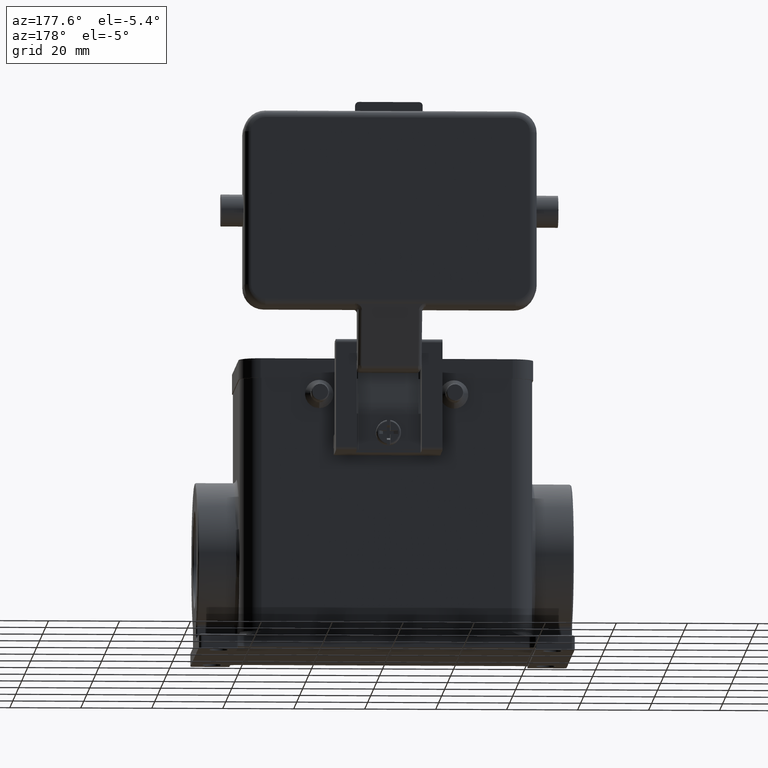
[diagram: clean part render]
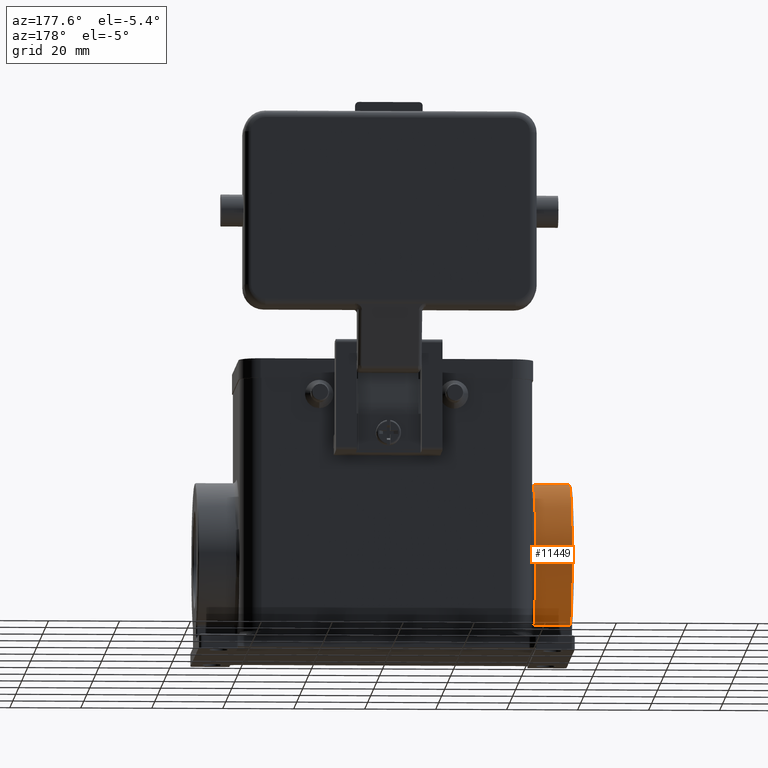
[diagram: same view with one face highlighted and labeled with its STEP entity id]
A machine part, auxiliary view. The second image highlights one B-rep face of the part: STEP entity #11449.
In plain terms, the highlighted face is a freeform B-spline surface patch.
Its self-contained STEP definition (entity closure, byte-faithful):
#4511=CARTESIAN_POINT('',(-52.500000000000000,-9.999999999999996,-5.685174088281308));
#4512=VERTEX_POINT('',#4511);
#4513=CARTESIAN_POINT('',(-42.250000000000000,-9.999999999999996,-5.685174088281308));
#4514=VERTEX_POINT('',#4513);
#4515=CARTESIAN_POINT('',(-52.500000000000000,-9.999999999999996,-5.685174088281308));
#4516=DIRECTION('',(1.0,0.0,0.0));
#4517=VECTOR('',#4516,10.250000000000000);
#4518=LINE('',#4515,#4517);
#4519=EDGE_CURVE('',#4512,#4514,#4518,.T.);
#4587=CARTESIAN_POINT('',(-52.500000000000000,10.516483516483516,-44.038541815158290));
#4588=VERTEX_POINT('',#4587);
#4596=CARTESIAN_POINT('',(-42.250000000000000,10.516483516483516,-44.038541815158290));
#4597=VERTEX_POINT('',#4596);
#4598=CARTESIAN_POINT('',(-52.500000000000000,10.516483516483516,-44.038541815158290));
#4599=DIRECTION('',(1.0,0.0,0.0));
#4600=VECTOR('',#4599,10.250000000000000);
#4601=LINE('',#4598,#4600);
#4602=EDGE_CURVE('',#4588,#4597,#4601,.T.);
#5053=CARTESIAN_POINT('',(-42.250000000000000,2.663519E-015,-3.250000000000007));
#5054=VERTEX_POINT('',#5053);
#5064=CARTESIAN_POINT('',(-42.250000000000000,0.0,-25.000000000000007));
#5065=DIRECTION('',(1.0,0.0,0.0));
#5066=DIRECTION('',(0.0,0.0,1.0));
#5067=AXIS2_PLACEMENT_3D('',#5064,#5065,#5066);
#5068=CIRCLE('',#5067,21.750000000000000);
#5069=EDGE_CURVE('',#5054,#4514,#5068,.T.);
#6549=CARTESIAN_POINT('',(-52.500000000000000,-2.663519E-015,-3.250000000000007));
#6550=VERTEX_POINT('',#6549);
#6560=CARTESIAN_POINT('',(-52.500000000000000,0.0,-25.000000000000007));
#6561=DIRECTION('',(-1.0,0.0,0.0));
#6562=DIRECTION('',(0.0,0.0,1.0));
#6563=AXIS2_PLACEMENT_3D('',#6560,#6561,#6562);
#6564=CIRCLE('',#6563,21.750000000000000);
#6565=EDGE_CURVE('',#6550,#4588,#6564,.T.);
#7260=CARTESIAN_POINT('',(-52.500000000000000,0.0,-25.000000000000007));
#7261=DIRECTION('',(-1.0,0.0,0.0));
#7262=DIRECTION('',(0.0,0.0,1.0));
#7263=AXIS2_PLACEMENT_3D('',#7260,#7261,#7262);
#7264=CIRCLE('',#7263,21.750000000000000);
#7265=EDGE_CURVE('',#4512,#6550,#7264,.T.);
#10264=CARTESIAN_POINT('',(-42.250000000000000,20.698351648351650,-18.318627458285356));
#10265=VERTEX_POINT('',#10264);
#10273=CARTESIAN_POINT('',(-42.250000000000000,0.0,-25.000000000000007));
#10274=DIRECTION('',(1.0,0.0,0.0));
#10275=DIRECTION('',(0.0,0.0,1.0));
#10276=AXIS2_PLACEMENT_3D('',#10273,#10274,#10275);
#10277=CIRCLE('',#10276,21.750000000000000);
#10278=EDGE_CURVE('',#10265,#5054,#10277,.T.);
#10350=CARTESIAN_POINT('',(-42.250000000000014,20.698351648201804,-31.681372542178863));
#10351=VERTEX_POINT('',#10350);
#10359=CARTESIAN_POINT('',(-42.250000000000014,20.698351648201808,-31.681372542178863));
#10360=CARTESIAN_POINT('',(-42.250000000011525,21.190041407282408,-30.158157443631008));
#10361=CARTESIAN_POINT('',(-42.199230832451271,21.516185683631189,-28.565660586151104));
#10362=CARTESIAN_POINT('',(-42.157212301855836,21.792417381448455,-25.513573506299917));
#10363=CARTESIAN_POINT('',(-42.160311314989258,21.778082060807414,-24.064629471039005));
#10364=CARTESIAN_POINT('',(-42.197680630376865,21.521120062736156,-21.725379443399049));
#10365=CARTESIAN_POINT('',(-42.218592708344069,21.365716023864817,-20.830110571717228));
#10366=CARTESIAN_POINT('',(-42.243054690615708,21.024183033833481,-19.399440523141564));
#10367=CARTESIAN_POINT('',(-42.250000000000014,20.871481845198993,-18.854970802848339));
#10368=CARTESIAN_POINT('',(-42.250000000000014,20.698351648351654,-18.318627458285352));
#10369=B_SPLINE_CURVE_WITH_KNOTS('',3,(#10359,#10360,#10361,#10362,#10363,#10364,#10365,#10366,#10367,#10368),.UNSPECIFIED.,.F.,.U.,(4,2,2,2,4),(0.0,0.502259466081313,0.955000393253202,1.237963472735632,1.414815397412151),.UNSPECIFIED.);
#10370=EDGE_CURVE('',#10351,#10265,#10369,.T.);
#10483=CARTESIAN_POINT('',(-42.250000000000000,0.0,-25.000000000000007));
#10484=DIRECTION('',(1.000000000000000,1.440052E-016,-9.455961E-017));
#10485=DIRECTION('',(-1.722760E-016,0.835898238160532,-0.548884446345602));
#10486=AXIS2_PLACEMENT_3D('',#10483,#10484,#10485);
#10487=CIRCLE('',#10486,21.749999999999993);
#10488=EDGE_CURVE('',#4597,#10351,#10487,.T.);
#11413=CARTESIAN_POINT('',(-52.500000000000000,9.999999999999995,-44.314825911718707));
#11414=CARTESIAN_POINT('',(-42.143217504529851,9.999999999999995,-44.314825911718707));
#11415=CARTESIAN_POINT('',(-52.500000000000000,-9.314825911718703,-54.314825911718700));
#11416=CARTESIAN_POINT('',(-42.143217504529851,-9.314825911718703,-54.314825911718700));
#11417=CARTESIAN_POINT('',(-52.500000000000000,-19.314825911718700,-35.0));
#11418=CARTESIAN_POINT('',(-42.143217504529851,-19.314825911718700,-35.0));
#11419=CARTESIAN_POINT('',(-52.500000000000000,-29.314825911718689,-15.685174088281304));
#11420=CARTESIAN_POINT('',(-42.143217504529851,-29.314825911718689,-15.685174088281304));
#11421=CARTESIAN_POINT('',(-52.500000000000000,-9.999999999999995,-5.685174088281308));
#11422=CARTESIAN_POINT('',(-42.143217504529851,-9.999999999999995,-5.685174088281308));
#11423=CARTESIAN_POINT('',(-52.500000000000000,9.314825911718703,4.314825911718682));
#11424=CARTESIAN_POINT('',(-42.143217504529851,9.314825911718703,4.314825911718682));
#11425=CARTESIAN_POINT('',(-52.500000000000000,19.314825911718700,-15.000000000000012));
#11426=CARTESIAN_POINT('',(-42.143217504529851,19.314825911718700,-15.000000000000012));
#11427=CARTESIAN_POINT('',(-52.500000000000000,29.314825911718689,-34.314825911718714));
#11428=CARTESIAN_POINT('',(-42.143217504529851,29.314825911718689,-34.314825911718714));
#11429=CARTESIAN_POINT('',(-52.500000000000000,9.999999999999995,-44.314825911718707));
#11430=CARTESIAN_POINT('',(-42.143217504529851,9.999999999999995,-44.314825911718707));
#11438=(BOUNDED_SURFACE()B_SPLINE_SURFACE(1,2,((#11413,#11415,#11417,#11419,#11421,#11423,#11425,#11427,#11429),(#11414,#11416,#11418,#11420,#11422,#11424,#11426,#11428,#11430)),.UNSPECIFIED.,.F.,.T.,.U.)B_SPLINE_SURFACE_WITH_KNOTS((2,2),(3,2,2,2,3),(0.022988505747127,0.499162413584835),(0.0,34.164820107788998,68.329640215577996,102.494460323366990,136.659280431155990),.UNSPECIFIED.)GEOMETRIC_REPRESENTATION_ITEM()RATIONAL_B_SPLINE_SURFACE(((1.0,0.707106781186548,1.0,0.707106781186548,1.0,0.707106781186548,1.0,0.707106781186548,1.0),(1.0,0.707106781186548,1.0,0.707106781186548,1.0,0.707106781186548,1.0,0.707106781186548,1.0)))REPRESENTATION_ITEM('')SURFACE());
#11439=ORIENTED_EDGE('',*,*,#4519,.T.);
#11440=ORIENTED_EDGE('',*,*,#5069,.F.);
#11441=ORIENTED_EDGE('',*,*,#10278,.F.);
#11442=ORIENTED_EDGE('',*,*,#10370,.F.);
#11443=ORIENTED_EDGE('',*,*,#10488,.F.);
#11444=ORIENTED_EDGE('',*,*,#4602,.F.);
#11445=ORIENTED_EDGE('',*,*,#6565,.F.);
#11446=ORIENTED_EDGE('',*,*,#7265,.F.);
#11447=EDGE_LOOP('',(#11439,#11440,#11441,#11442,#11443,#11444,#11445,#11446));
#11448=FACE_OUTER_BOUND('',#11447,.T.);
#11449=ADVANCED_FACE('',(#11448),#11438,.T.);